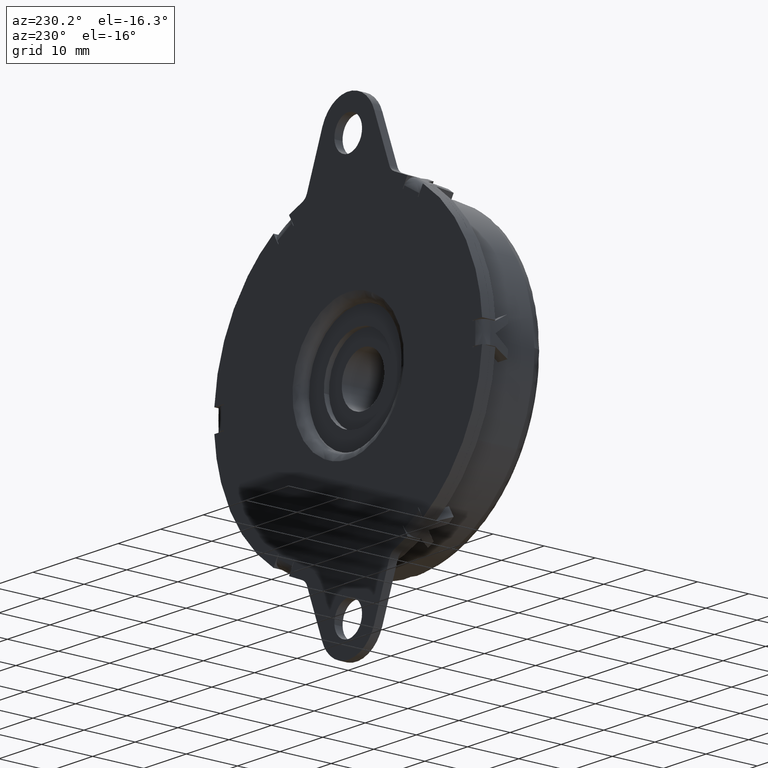
[diagram: clean part render]
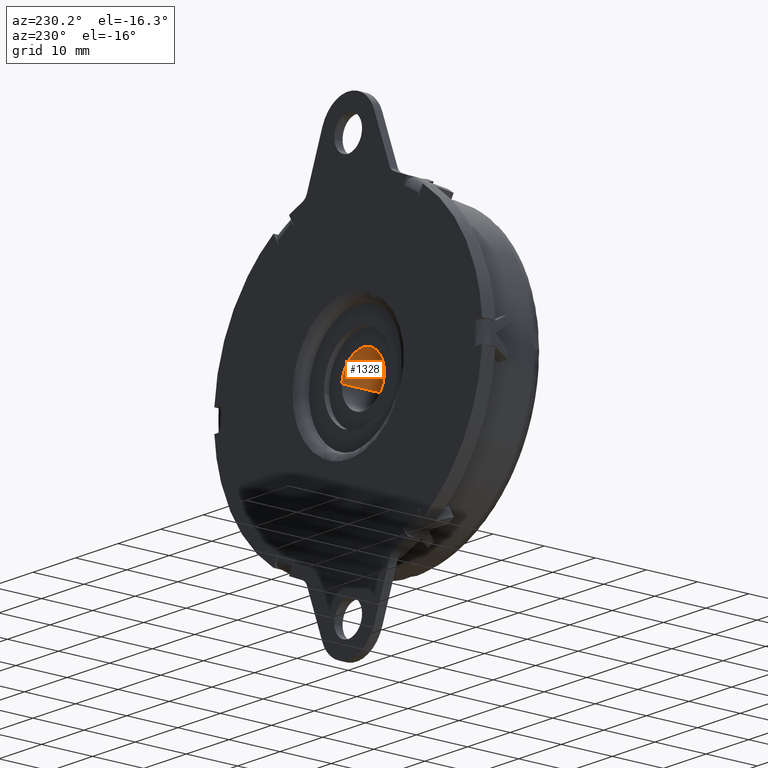
[diagram: same view with one face highlighted and labeled with its STEP entity id]
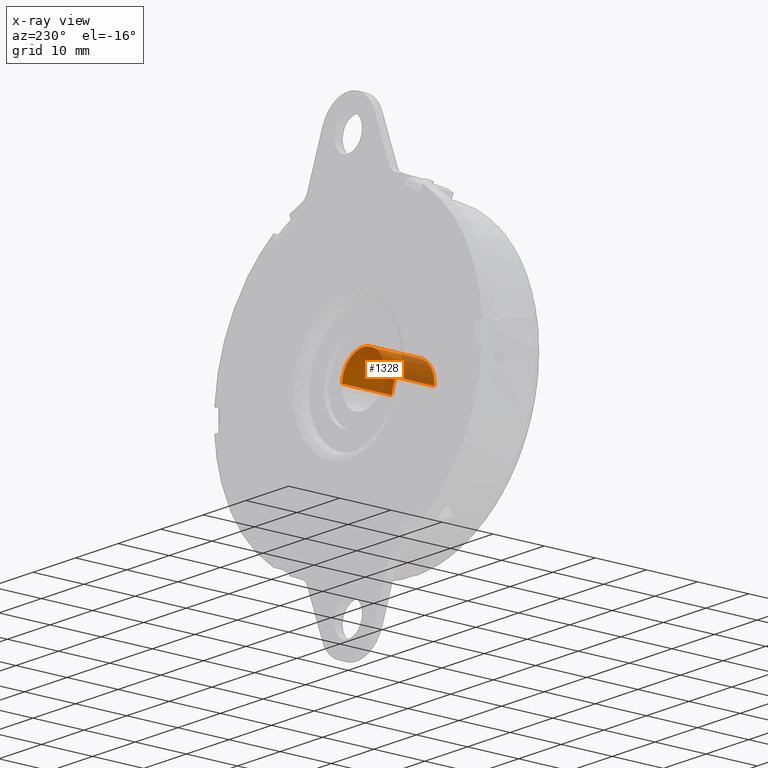
[diagram: x-ray of the same camera — body ghosted, the highlighted face saturated]
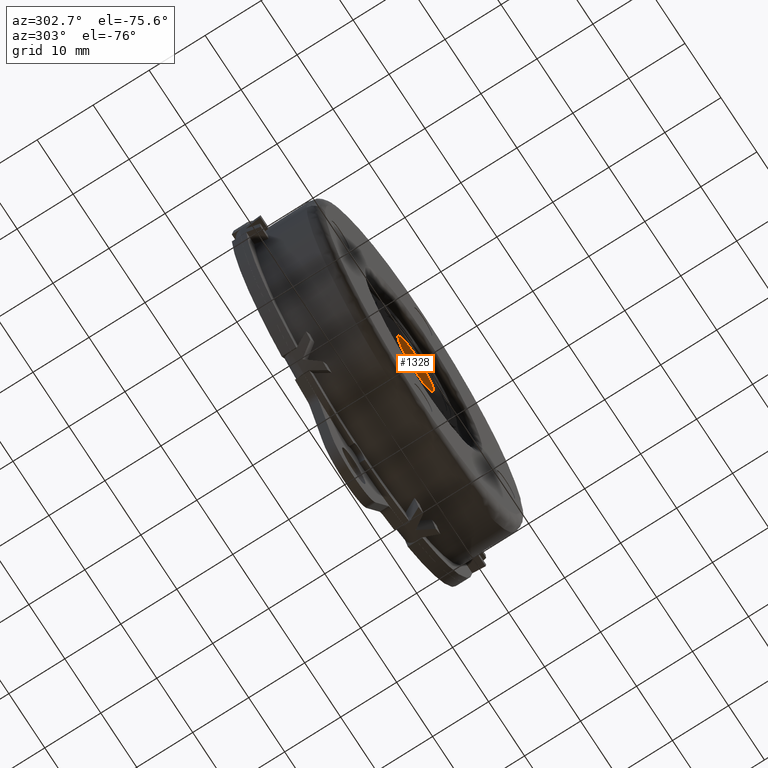
[diagram: same view with one face highlighted and labeled with its STEP entity id]
A machine part, auxiliary view. The second image highlights one B-rep face of the part: STEP entity #1328.
The next image is the same camera in x-ray: the body ghosted, the highlighted face saturated — about 30% of this face is hidden behind the body in this view.
A second angle (auxiliary view) of the same face is appended — the face is thin or edge-on in the first view.
In plain terms, the highlighted face is a freeform B-spline surface patch.
Its self-contained STEP definition (entity closure, byte-faithful):
#288=CARTESIAN_POINT('',(-4.984586668657498,-12.700000000000159,-0.392295478742656));
#289=VERTEX_POINT('',#288);
#303=CARTESIAN_POINT('',(0.0,-12.700000000000159,5.0));
#304=VERTEX_POINT('',#303);
#305=CARTESIAN_POINT('',(-4.984586668657499,-12.700000000000166,-0.392295478742655));
#306=CARTESIAN_POINT('',(-5.0,-12.700000000000163,-0.196450535090304));
#307=CARTESIAN_POINT('',(-5.0,-12.700000000000159,0.0));
#308=CARTESIAN_POINT('',(-5.000000000000001,-12.700000000000159,5.000000000000001));
#309=CARTESIAN_POINT('',(0.0,-12.700000000000159,5.0));
#317=(BOUNDED_CURVE()B_SPLINE_CURVE(2,(#305,#306,#307,#308,#309),.UNSPECIFIED.,.F.,.U.)B_SPLINE_CURVE_WITH_KNOTS((3,2,3),(0.736331300629210,0.750000000000000,1.0),.UNSPECIFIED.)CURVE()GEOMETRIC_REPRESENTATION_ITEM()RATIONAL_B_SPLINE_CURVE((0.969723356164392,0.983986122577183,1.0,0.707106781186548,1.0))REPRESENTATION_ITEM(''));
#318=EDGE_CURVE('',#289,#304,#317,.T.);
#320=CARTESIAN_POINT('',(4.984586668657499,-12.700000000000159,0.392295478742656));
#321=VERTEX_POINT('',#320);
#322=CARTESIAN_POINT('',(0.0,-12.700000000000159,5.0));
#323=CARTESIAN_POINT('',(4.621952458194832,-12.700000000000157,5.0));
#324=CARTESIAN_POINT('',(4.984586668657499,-12.700000000000168,0.392295478742656));
#332=(BOUNDED_CURVE()B_SPLINE_CURVE(2,(#322,#323,#324),.UNSPECIFIED.,.F.,.U.)B_SPLINE_CURVE_WITH_KNOTS((3,3),(0.0,0.236331300629210),.UNSPECIFIED.)CURVE()GEOMETRIC_REPRESENTATION_ITEM()RATIONAL_B_SPLINE_CURVE((1.0,0.723120658609364,0.969723356164392))REPRESENTATION_ITEM(''));
#333=EDGE_CURVE('',#304,#321,#332,.T.);
#1262=CARTESIAN_POINT('',(4.984586668665638,-2.655000000000123,0.392295478639228));
#1263=CARTESIAN_POINT('',(4.592291190026410,-2.655000000000123,5.376882147304866));
#1264=CARTESIAN_POINT('',(-0.392295478639228,-2.655000000000123,4.984586668665638));
#1265=CARTESIAN_POINT('',(-5.376882147304866,-2.655000000000123,4.592291190026410));
#1266=CARTESIAN_POINT('',(-4.984586668665638,-2.655000000000123,-0.392295478639228));
#1267=CARTESIAN_POINT('',(4.984586668665638,-12.951125000000159,0.392295478639228));
#1268=CARTESIAN_POINT('',(4.592291190026410,-12.951125000000161,5.376882147304866));
#1269=CARTESIAN_POINT('',(-0.392295478639228,-12.951125000000159,4.984586668665638));
#1270=CARTESIAN_POINT('',(-5.376882147304866,-12.951125000000161,4.592291190026410));
#1271=CARTESIAN_POINT('',(-4.984586668665638,-12.951125000000159,-0.392295478639228));
#1279=(BOUNDED_SURFACE()B_SPLINE_SURFACE(2,1,((#1262,#1267),(#1263,#1268),(#1264,#1269),(#1265,#1270),(#1266,#1271)),.UNSPECIFIED.,.F.,.F.,.U.)B_SPLINE_SURFACE_WITH_KNOTS((3,2,3),(2,2),(0.0,8.284271247461899,16.568542494923800),(0.0,10.296125000000041),.UNSPECIFIED.)GEOMETRIC_REPRESENTATION_ITEM()RATIONAL_B_SPLINE_SURFACE(((1.0,1.0),(0.707106781186548,0.707106781186548),(1.0,1.0),(0.707106781186548,0.707106781186548),(1.0,1.0)))REPRESENTATION_ITEM('')SURFACE());
#1280=ORIENTED_EDGE('',*,*,#333,.F.);
#1281=ORIENTED_EDGE('',*,*,#318,.F.);
#1282=CARTESIAN_POINT('',(-4.984586668657498,-2.900000000000125,-0.392295478742656));
#1283=VERTEX_POINT('',#1282);
#1284=CARTESIAN_POINT('',(-4.984586668657498,-2.900000000000125,-0.392295478742656));
#1285=CARTESIAN_POINT('',(-4.984586668657498,-12.700000000000159,-0.392295478742656));
#1286=QUASI_UNIFORM_CURVE('',1,(#1284,#1285),.UNSPECIFIED.,.F.,.U.);
#1287=EDGE_CURVE('',#1283,#289,#1286,.T.);
#1288=ORIENTED_EDGE('',*,*,#1287,.F.);
#1289=CARTESIAN_POINT('',(0.0,-2.900000000000125,5.0));
#1290=VERTEX_POINT('',#1289);
#1291=CARTESIAN_POINT('',(-4.984586668657499,-2.900000000000125,-0.392295478742655));
#1292=CARTESIAN_POINT('',(-5.0,-2.900000000000125,-0.196450535090304));
#1293=CARTESIAN_POINT('',(-5.0,-2.900000000000125,0.0));
#1294=CARTESIAN_POINT('',(-5.000000000000001,-2.900000000000125,5.000000000000001));
#1295=CARTESIAN_POINT('',(0.0,-2.900000000000125,5.0));
#1303=(BOUNDED_CURVE()B_SPLINE_CURVE(2,(#1291,#1292,#1293,#1294,#1295),.UNSPECIFIED.,.F.,.U.)B_SPLINE_CURVE_WITH_KNOTS((3,2,3),(0.736331300629210,0.750000000000000,1.0),.UNSPECIFIED.)CURVE()GEOMETRIC_REPRESENTATION_ITEM()RATIONAL_B_SPLINE_CURVE((0.969723356164392,0.983986122577183,1.0,0.707106781186548,1.0))REPRESENTATION_ITEM(''));
#1304=EDGE_CURVE('',#1283,#1290,#1303,.T.);
#1305=ORIENTED_EDGE('',*,*,#1304,.T.);
#1306=CARTESIAN_POINT('',(4.984586668657498,-2.900000000000124,0.392295478742656));
#1307=VERTEX_POINT('',#1306);
#1308=CARTESIAN_POINT('',(0.0,-2.900000000000125,5.0));
#1309=CARTESIAN_POINT('',(4.621952458194832,-2.900000000000126,5.0));
#1310=CARTESIAN_POINT('',(4.984586668657499,-2.900000000000125,0.392295478742656));
#1318=(BOUNDED_CURVE()B_SPLINE_CURVE(2,(#1308,#1309,#1310),.UNSPECIFIED.,.F.,.U.)B_SPLINE_CURVE_WITH_KNOTS((3,3),(0.0,0.236331300629210),.UNSPECIFIED.)CURVE()GEOMETRIC_REPRESENTATION_ITEM()RATIONAL_B_SPLINE_CURVE((1.0,0.723120658609364,0.969723356164392))REPRESENTATION_ITEM(''));
#1319=EDGE_CURVE('',#1290,#1307,#1318,.T.);
#1320=ORIENTED_EDGE('',*,*,#1319,.T.);
#1321=CARTESIAN_POINT('',(4.984586668657498,-2.900000000000124,0.392295478742656));
#1322=CARTESIAN_POINT('',(4.984586668657499,-12.700000000000159,0.392295478742656));
#1323=QUASI_UNIFORM_CURVE('',1,(#1321,#1322),.UNSPECIFIED.,.F.,.U.);
#1324=EDGE_CURVE('',#1307,#321,#1323,.T.);
#1325=ORIENTED_EDGE('',*,*,#1324,.T.);
#1326=EDGE_LOOP('',(#1280,#1281,#1288,#1305,#1320,#1325));
#1327=FACE_OUTER_BOUND('',#1326,.T.);
#1328=ADVANCED_FACE('',(#1327),#1279,.F.);